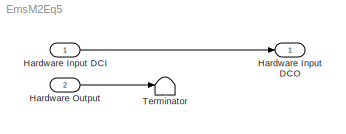
MODEL EmsM2Eq5
KIND model
CONFIG PostLoadFcn = , if any(exist('dsrtsu_mdlpostloadfcn', 'file') == [2, 3, 6]), try dsrtsu_mdlpostloadfcn('Execute', bdroot); catch fprintf('Error in PostLoadFcn (dsrtsu_mdlpostloadfcn) for model \"%s\":\\n %s\\n', bdroot, lasterr); end, end, \n
BLOCK [Inport] Hardware Input DCI
  IconDisplay = Port number
  OutDataTypeStr = Bus: HARDWARE_INPUT_BUS
  SID = 1
BLOCK [Outport] Hardware Input DCO
  BusOutputAsStruct = on
  IconDisplay = Port number
  OutDataTypeStr = Bus: HARDWARE_INPUT_BUS
  SID = 2
BLOCK [Inport] Hardware Output
  IconDisplay = Port number
  OutDataTypeStr = Bus: HARDWARE_OUTPUT_BUS
  Port = 2
  SID = 3
BLOCK [Terminator] Terminator
  SID = 80
LINE Hardware Input DCI:1 -> Hardware Input DCO:1
LINE Hardware Output:1 -> Terminator:1
